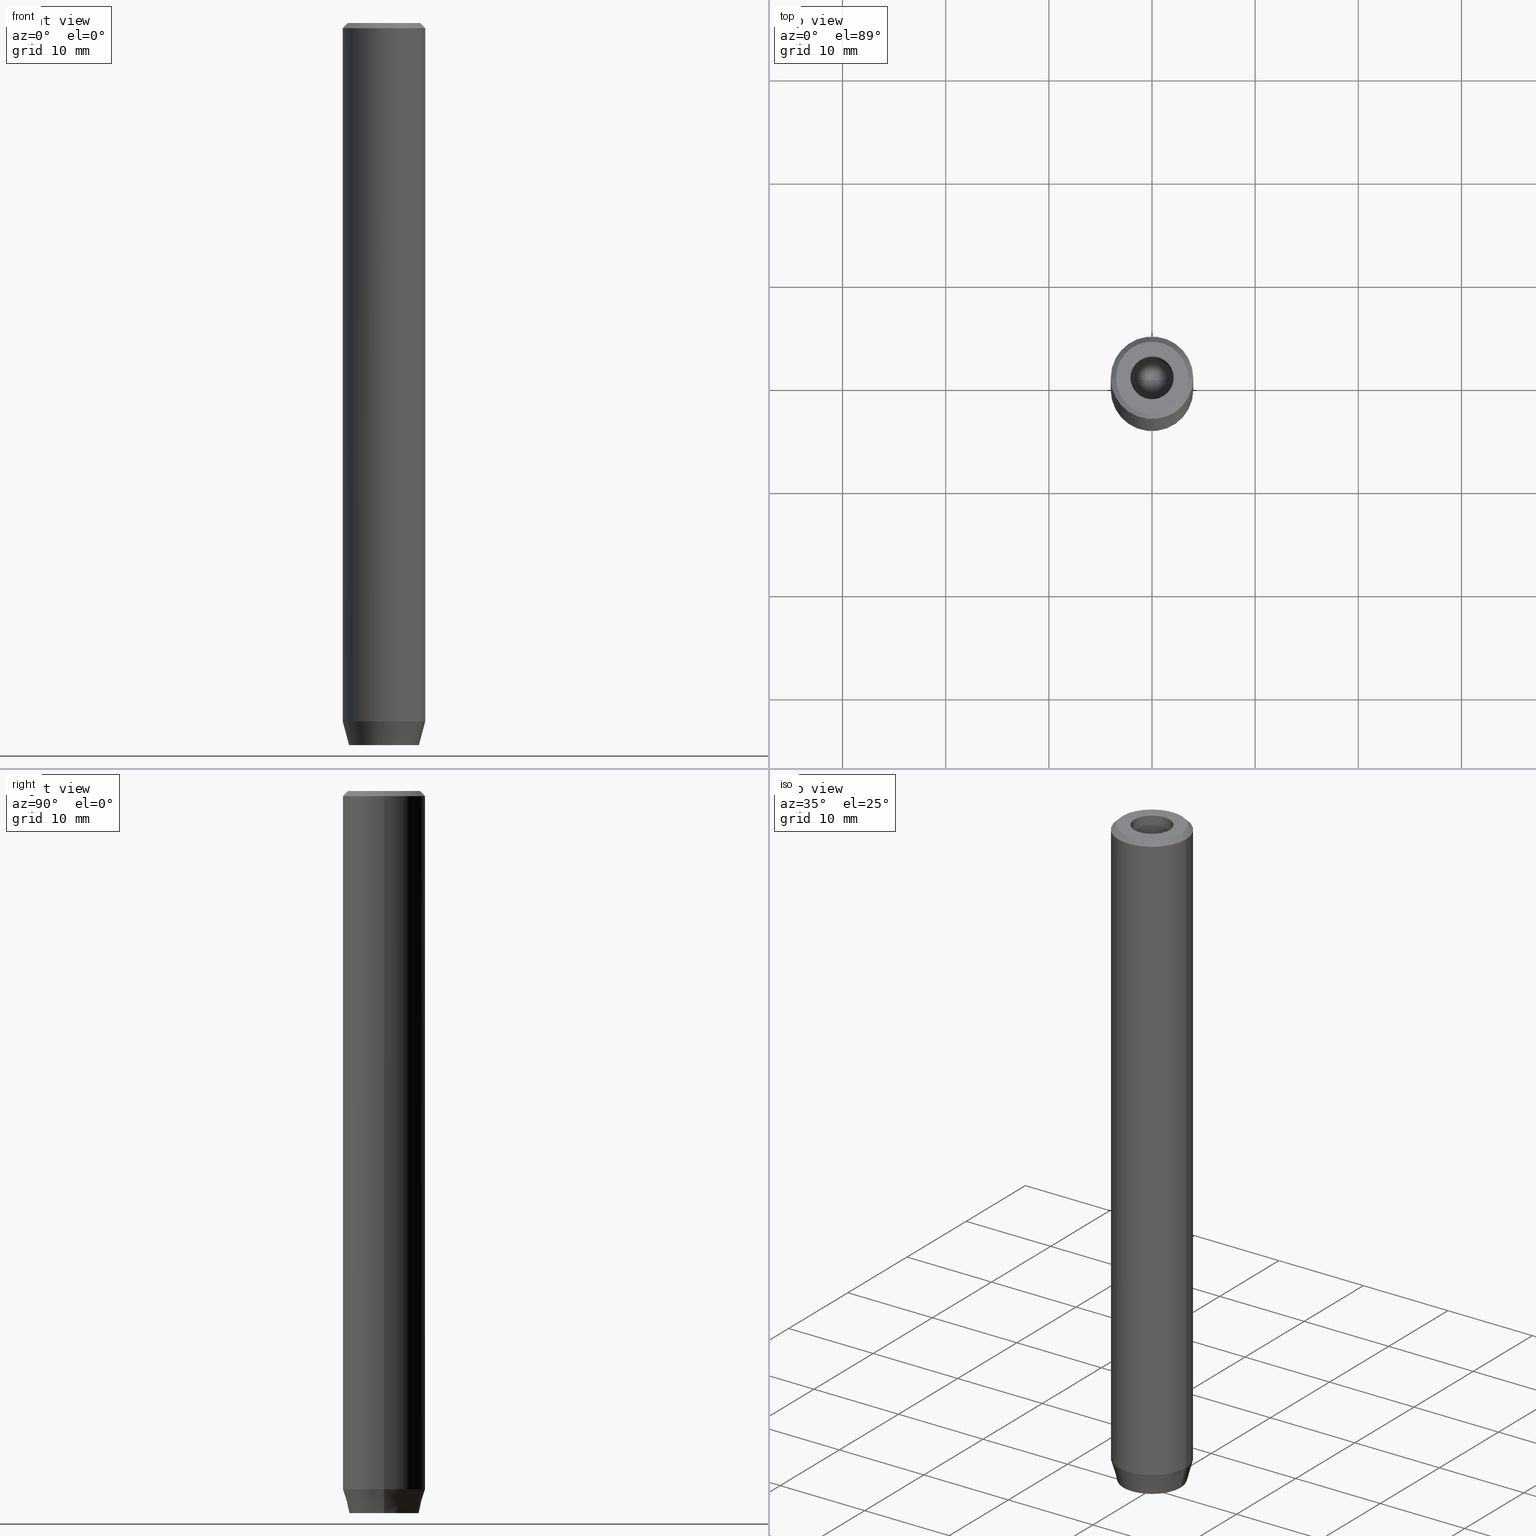
[diagram: canonical four-view strip — front | top / right | iso, engineering-drawing reading convention]
A machine part, canonical four-view strip (front | top / right | iso — engineering-drawing reading convention). The complete STEP part file that produces these views, byte-faithful:
ISO-10303-21;
HEADER;
FILE_DESCRIPTION (( 'STEP AP203' ),
    '1' );
FILE_NAME ('b633.STEP',
    '2024-01-02T23:09:10',
    ( '' ),
    ( '' ),
    'SwSTEP 2.0',
    'SolidWorks 2019',
    '' );
FILE_SCHEMA (( 'CONFIG_CONTROL_DESIGN' ));
ENDSEC;

DATA;
#1 = DIRECTION ( 'NONE',  ( -0.000000000000000000, -0.000000000000000000, 1.000000000000000000 ) ) ;
#2 = CC_DESIGN_PERSON_AND_ORGANIZATION_ASSIGNMENT ( #376, #518, ( #102 ) ) ;
#3 = DATE_AND_TIME ( #6, #151 ) ;
#4 = FACE_OUTER_BOUND ( 'NONE', #96, .T. ) ;
#5 = AXIS2_PLACEMENT_3D ( 'NONE', #230, #312, #233 ) ;
#6 = CALENDAR_DATE ( 2024, 3, 1 ) ;
#7 = APPROVAL_ROLE ( '' ) ;
#8 = CARTESIAN_POINT ( 'NONE',  ( -3.370670652075219192E-15, 0.000000000000000000, -13.76180729995787644 ) ) ;
#9 = VERTEX_POINT ( 'NONE', #341 ) ;
#10 = DIRECTION ( 'NONE',  ( 0.000000000000000000, 0.000000000000000000, -1.000000000000000000 ) ) ;
#11 = CARTESIAN_POINT ( 'NONE',  ( -2.099999999999997868, 2.571758278209438999E-16, 0.000000000000000000 ) ) ;
#12 = ORIENTED_EDGE ( 'NONE', *, *, #474, .F. ) ;
#13 = CIRCLE ( 'NONE', #539, 2.099999999999996980 ) ;
#14 = VECTOR ( 'NONE', #338, 1000.000000000000000 ) ;
#15 = CC_DESIGN_SECURITY_CLASSIFICATION ( #326, ( #572 ) ) ;
#16 = DIRECTION ( 'NONE',  ( -0.000000000000000000, -0.000000000000000000, 1.000000000000000000 ) ) ;
#17 = VERTEX_POINT ( 'NONE', #520 ) ;
#18 = EDGE_CURVE ( 'NONE', #353, #257, #163, .T. ) ;
#19 = DIRECTION ( 'NONE',  ( 1.000000000000000000, 0.000000000000000000, 0.000000000000000000 ) ) ;
#20 = DIRECTION ( 'NONE',  ( 1.000000000000000000, 0.000000000000000000, 0.000000000000000000 ) ) ;
#21 = EDGE_CURVE ( 'NONE', #276, #444, #169, .T. ) ;
#22 = ORIENTED_EDGE ( 'NONE', *, *, #124, .F. ) ;
#23 = VERTEX_POINT ( 'NONE', #251 ) ;
#24 = CLOSED_SHELL ( 'NONE', ( #87, #198, #524, #315, #508, #464, #574, #58, #144, #367, #249, #400, #356, #268, #76, #252, #98, #343, #325 ) ) ;
#25 = CARTESIAN_POINT ( 'NONE',  ( -3.499999999999989342, 0.000000000000000000, 0.000000000000000000 ) ) ;
#26 = CARTESIAN_POINT ( 'NONE',  ( -2.099999999999996980, 2.571758278209438013E-16, -12.50000000000000000 ) ) ;
#27 = CONICAL_SURFACE ( 'NONE', #467, 2.099999999999996980, 1.029744258676653201 ) ;
#28 = DIRECTION ( 'NONE',  ( -0.000000000000000000, -0.000000000000000000, 1.000000000000000000 ) ) ;
#29 = ORIENTED_EDGE ( 'NONE', *, *, #385, .T. ) ;
#30 = ORIENTED_EDGE ( 'NONE', *, *, #301, .T. ) ;
#31 = ORIENTED_EDGE ( 'NONE', *, *, #40, .F. ) ;
#32 = AXIS2_PLACEMENT_3D ( 'NONE', #306, #443, #486 ) ;
#33 = AXIS2_PLACEMENT_3D ( 'NONE', #43, #550, #505 ) ;
#34 = ORIENTED_EDGE ( 'NONE', *, *, #234, .F. ) ;
#35 = ORIENTED_EDGE ( 'NONE', *, *, #232, .T. ) ;
#36 = ORIENTED_EDGE ( 'NONE', *, *, #402, .T. ) ;
#37 = EDGE_CURVE ( 'NONE', #353, #219, #566, .T. ) ;
#38 = CYLINDRICAL_SURFACE ( 'NONE', #202, 2.099999999999997868 ) ;
#39 = ORIENTED_EDGE ( 'NONE', *, *, #18, .F. ) ;
#40 = EDGE_CURVE ( 'NONE', #133, #9, #70, .T. ) ;
#41 = CARTESIAN_POINT ( 'NONE',  ( -4.000000000000000000, 4.898587196589412829E-16, -67.70000000000001705 ) ) ;
#42 = DIRECTION ( 'NONE',  ( -0.5000000000000001110, 0.8660254037844385966, 0.000000000000000000 ) ) ;
#43 = CARTESIAN_POINT ( 'NONE',  ( -1.000000000000000222, -1.732050807568877637, -67.20000000000000284 ) ) ;
#44 = VECTOR ( 'NONE', #229, 1000.000000000000000 ) ;
#45 = CARTESIAN_POINT ( 'NONE',  ( -1.999999999999998224, 1.126735949052866956E-15, -70.00000000000000000 ) ) ;
#46 = EDGE_LOOP ( 'NONE', ( #59, #517 ) ) ;
#47 = EDGE_CURVE ( 'NONE', #430, #107, #530, .T. ) ;
#48 = DIRECTION ( 'NONE',  ( 1.000000000000000000, 0.000000000000000000, 0.000000000000000000 ) ) ;
#49 = CARTESIAN_POINT ( 'NONE',  ( 2.168404344971008868E-16, -2.309401076758503812, -67.20000000000000284 ) ) ;
#50 = CARTESIAN_POINT ( 'NONE',  ( -1.999999999999998224, 1.126735949052866956E-15, -67.20000000000000284 ) ) ;
#51 = CC_DESIGN_DATE_AND_TIME_ASSIGNMENT ( #3, #188, ( #326 ) ) ;
#52 = CARTESIAN_POINT ( 'NONE',  ( 0.000000000000000000, 0.000000000000000000, 0.000000000000000000 ) ) ;
#53 = APPROVAL_DATE_TIME ( #475, #191 ) ;
#54 = LINE ( 'NONE', #556, #362 ) ;
#55 = VECTOR ( 'NONE', #434, 1000.000000000000000 ) ;
#56 = PERSON_AND_ORGANIZATION ( #166, #584 ) ;
#57 = LINE ( 'NONE', #159, #553 ) ;
#58 = ADVANCED_FACE ( 'NONE', ( #424 ), #136, .T. ) ;
#59 = ORIENTED_EDGE ( 'NONE', *, *, #281, .F. ) ;
#60 = CYLINDRICAL_SURFACE ( 'NONE', #457, 2.099999999999997868 ) ;
#61 = DIRECTION ( 'NONE',  ( -0.000000000000000000, -0.000000000000000000, -1.000000000000000000 ) ) ;
#62 = CARTESIAN_POINT ( 'NONE',  ( 0.000000000000000000, 0.000000000000000000, 0.000000000000000000 ) ) ;
#63 = DIRECTION ( 'NONE',  ( -0.000000000000000000, -0.000000000000000000, 1.000000000000000000 ) ) ;
#64 = EDGE_CURVE ( 'NONE', #107, #430, #13, .T. ) ;
#65 = AXIS2_PLACEMENT_3D ( 'NONE', #195, #63, #19 ) ;
#66 = LINE ( 'NONE', #476, #541 ) ;
#67 = CARTESIAN_POINT ( 'NONE',  ( 0.000000000000000000, 0.000000000000000000, -67.70000000000001705 ) ) ;
#68 = ORIENTED_EDGE ( 'NONE', *, *, #303, .F. ) ;
#69 = DIRECTION ( 'NONE',  ( -0.000000000000000000, -0.000000000000000000, 1.000000000000000000 ) ) ;
#70 = LINE ( 'NONE', #113, #454 ) ;
#71 = DIRECTION ( 'NONE',  ( -0.8660254037844387076, 0.5000000000000001110, 0.000000000000000000 ) ) ;
#72 = ORIENTED_EDGE ( 'NONE', *, *, #446, .F. ) ;
#73 = ORIENTED_EDGE ( 'NONE', *, *, #255, .T. ) ;
#74 = VERTEX_POINT ( 'NONE', #288 ) ;
#75 = ORIENTED_EDGE ( 'NONE', *, *, #145, .T. ) ;
#76 = ADVANCED_FACE ( 'NONE', ( #382 ), #427, .F. ) ;
#77 =( NAMED_UNIT ( * ) PLANE_ANGLE_UNIT ( ) SI_UNIT ( $, .RADIAN. ) );
#78 = VECTOR ( 'NONE', #125, 1000.000000000000114 ) ;
#79 = EDGE_CURVE ( 'NONE', #107, #122, #103, .T. ) ;
#80 = CIRCLE ( 'NONE', #440, 4.000000000000000000 ) ;
#81 = LINE ( 'NONE', #264, #91 ) ;
#82 = ORIENTED_EDGE ( 'NONE', *, *, #385, .F. ) ;
#83 = LINE ( 'NONE', #506, #570 ) ;
#84 = ORIENTED_EDGE ( 'NONE', *, *, #37, .T. ) ;
#85 = LINE ( 'NONE', #361, #478 ) ;
#86 = ORIENTED_EDGE ( 'NONE', *, *, #106, .T. ) ;
#87 = ADVANCED_FACE ( 'NONE', ( #436 ), #60, .F. ) ;
#88 = LINE ( 'NONE', #183, #141 ) ;
#89 = DIRECTION ( 'NONE',  ( -0.000000000000000000, -0.000000000000000000, 1.000000000000000000 ) ) ;
#90 = VECTOR ( 'NONE', #500, 1000.000000000000000 ) ;
#91 = VECTOR ( 'NONE', #130, 1000.000000000000114 ) ;
#92 = CARTESIAN_POINT ( 'NONE',  ( -2.099999999999998757, 2.571758278209439985E-16, -1.990051048614449116E-16 ) ) ;
#93 =( LENGTH_UNIT ( ) NAMED_UNIT ( * ) SI_UNIT ( .MILLI., .METRE. ) );
#94 = APPROVAL_STATUS ( 'not_yet_approved' ) ;
#95 = DIRECTION ( 'NONE',  ( -1.000000000000000000, 0.000000000000000000, 0.000000000000000000 ) ) ;
#96 = EDGE_LOOP ( 'NONE', ( #73, #527, #126, #396 ) ) ;
#97 = PERSON_AND_ORGANIZATION_ROLE ( 'classification_officer' ) ;
#98 = ADVANCED_FACE ( 'NONE', ( #243 ), #346, .T. ) ;
#99 = LINE ( 'NONE', #11, #279 ) ;
#100 = AXIS2_PLACEMENT_3D ( 'NONE', #473, #372, #560 ) ;
#101 = PERSON_AND_ORGANIZATION ( #166, #584 ) ;
#102 = PRODUCT ( 'b633', 'b633', '', ( #104 ) ) ;
#103 = LINE ( 'NONE', #295, #391 ) ;
#104 = MECHANICAL_CONTEXT ( 'NONE', #240, 'mechanical' ) ;
#105 = CARTESIAN_POINT ( 'NONE',  ( -2.099999999999996980, 2.571758278209438013E-16, -12.50000000000000000 ) ) ;
#106 = EDGE_CURVE ( 'NONE', #271, #494, #513, .T. ) ;
#107 = VERTEX_POINT ( 'NONE', #563 ) ;
#108 = DATE_AND_TIME ( #153, #263 ) ;
#109 = DIRECTION ( 'NONE',  ( -1.000000000000000000, 0.000000000000000000, -0.000000000000000000 ) ) ;
#110 = ORIENTED_EDGE ( 'NONE', *, *, #474, .T. ) ;
#111 = VECTOR ( 'NONE', #335, 1000.000000000000000 ) ;
#112 = CC_DESIGN_APPROVAL ( #470, ( #326 ) ) ;
#113 = CARTESIAN_POINT ( 'NONE',  ( 1.000000000000000444, 1.732050807568877637, -70.00000000000000000 ) ) ;
#114 = ORIENTED_EDGE ( 'NONE', *, *, #543, .T. ) ;
#115 = DIRECTION ( 'NONE',  ( -0.7071067811865474617, 0.000000000000000000, -0.7071067811865474617 ) ) ;
#116 = DIRECTION ( 'NONE',  ( -0.000000000000000000, -0.000000000000000000, 1.000000000000000000 ) ) ;
#117 = VECTOR ( 'NONE', #156, 1000.000000000000000 ) ;
#118 = CARTESIAN_POINT ( 'NONE',  ( 0.000000000000000000, 0.000000000000000000, 0.000000000000000000 ) ) ;
#119 = ORIENTED_EDGE ( 'NONE', *, *, #40, .T. ) ;
#120 = AXIS2_PLACEMENT_3D ( 'NONE', #247, #516, #471 ) ;
#121 = VECTOR ( 'NONE', #374, 1000.000000000000000 ) ;
#122 = VERTEX_POINT ( 'NONE', #403 ) ;
#123 = EDGE_CURVE ( 'NONE', #350, #426, #333, .T. ) ;
#124 = EDGE_CURVE ( 'NONE', #122, #216, #298, .T. ) ;
#125 = DIRECTION ( 'NONE',  ( 0.7071067811865474617, 8.659560562354932858E-17, -0.7071067811865474617 ) ) ;
#126 = ORIENTED_EDGE ( 'NONE', *, *, #301, .F. ) ;
#127 = DIRECTION ( 'NONE',  ( 0.8660254037844388186, 0.4999999999999996669, 0.000000000000000000 ) ) ;
#128 = EDGE_LOOP ( 'NONE', ( #354, #86 ) ) ;
#129 = CC_DESIGN_PERSON_AND_ORGANIZATION_ASSIGNMENT ( #511, #462, ( #572 ) ) ;
#130 = DIRECTION ( 'NONE',  ( -0.8660254037844388186, -0.4999999999999996114, 0.000000000000000000 ) ) ;
#131 = DIRECTION ( 'NONE',  ( -0.000000000000000000, -0.000000000000000000, -1.000000000000000000 ) ) ;
#132 = DIRECTION ( 'NONE',  ( -0.000000000000000000, -0.000000000000000000, 1.000000000000000000 ) ) ;
#133 = VERTEX_POINT ( 'NONE', #414 ) ;
#134 = CARTESIAN_POINT ( 'NONE',  ( -1.999999999999998224, 1.126735949052866956E-15, -67.20000000000000284 ) ) ;
#135 = ORIENTED_EDGE ( 'NONE', *, *, #123, .F. ) ;
#136 = CYLINDRICAL_SURFACE ( 'NONE', #569, 4.000000000000000000 ) ;
#137 = DIRECTION ( 'NONE',  ( -0.000000000000000000, -0.000000000000000000, 1.000000000000000000 ) ) ;
#138 = CARTESIAN_POINT ( 'NONE',  ( 0.9999999999999997780, -1.732050807568878747, -67.20000000000000284 ) ) ;
#139 = ORIENTED_EDGE ( 'NONE', *, *, #429, .T. ) ;
#140 = CARTESIAN_POINT ( 'NONE',  ( 0.000000000000000000, 0.000000000000000000, -0.5000000000000108802 ) ) ;
#141 = VECTOR ( 'NONE', #364, 1000.000000000000000 ) ;
#142 = LOCAL_TIME ( 0, 9, 10.00000000000000000, #420 ) ;
#143 = ORIENTED_EDGE ( 'NONE', *, *, #567, .T. ) ;
#144 = ADVANCED_FACE ( 'NONE', ( #540 ), #487, .T. ) ;
#145 = EDGE_CURVE ( 'NONE', #542, #430, #322, .T. ) ;
#146 = COORDINATED_UNIVERSAL_TIME_OFFSET ( 1, 0, .AHEAD. ) ;
#147 = FACE_OUTER_BOUND ( 'NONE', #395, .T. ) ;
#148 = CALENDAR_DATE ( 2024, 3, 1 ) ;
#149 = CARTESIAN_POINT ( 'NONE',  ( 0.000000000000000000, 3.383716857408417766, -70.00000000000000000 ) ) ;
#150 = ORIENTED_EDGE ( 'NONE', *, *, #79, .T. ) ;
#151 = LOCAL_TIME ( 0, 9, 10.00000000000000000, #146 ) ;
#152 = DIRECTION ( 'NONE',  ( 1.000000000000000000, 0.000000000000000000, 0.000000000000000000 ) ) ;
#153 = CALENDAR_DATE ( 2024, 3, 1 ) ;
#154 = EDGE_CURVE ( 'NONE', #408, #176, #587, .T. ) ;
#155 = DIRECTION ( 'NONE',  ( -0.000000000000000000, -0.000000000000000000, 1.000000000000000000 ) ) ;
#156 = DIRECTION ( 'NONE',  ( -0.000000000000000000, -0.000000000000000000, -1.000000000000000000 ) ) ;
#157 = ORIENTED_EDGE ( 'NONE', *, *, #582, .F. ) ;
#158 = APPROVAL_DATE_TIME ( #431, #239 ) ;
#159 = CARTESIAN_POINT ( 'NONE',  ( 2.000000000000000888, 0.000000000000000000, -70.00000000000000000 ) ) ;
#160 = DIRECTION ( 'NONE',  ( 0.8660254037844385966, -0.5000000000000001110, 0.000000000000000000 ) ) ;
#161 = VECTOR ( 'NONE', #71, 999.9999999999998863 ) ;
#162 = CONICAL_SURFACE ( 'NONE', #181, 4.000000000000000000, 0.2617993877991497964 ) ;
#163 = LINE ( 'NONE', #167, #222 ) ;
#164 = EDGE_CURVE ( 'NONE', #408, #23, #83, .T. ) ;
#165 = DIRECTION ( 'NONE',  ( -0.2588190451025210725, 3.169619151431769255E-17, 0.9659258262890680902 ) ) ;
#166 = PERSON ( 'NEUR�EN�', 'NEUR�EN�', 'NEUR�EN�', ('NEUR�EN�'), ('NEUR�EN�'), ('NEUR�EN�') ) ;
#167 = CARTESIAN_POINT ( 'NONE',  ( 0.9999999999999997780, -1.732050807568878747, -67.20000000000000284 ) ) ;
#168 = ORIENTED_EDGE ( 'NONE', *, *, #154, .F. ) ;
#169 = CIRCLE ( 'NONE', #377, 4.000000000000000000 ) ;
#170 = ORIENTED_EDGE ( 'NONE', *, *, #568, .T. ) ;
#171 = AXIS2_PLACEMENT_3D ( 'NONE', #220, #496, #585 ) ;
#172 = PRODUCT_DEFINITION ( 'NEZN�M�', '', #572, #319 ) ;
#173 = EDGE_LOOP ( 'NONE', ( #143, #114, #29, #328 ) ) ;
#174 = PLANE ( 'NONE',  #552 ) ;
#175 = DIRECTION ( 'NONE',  ( -1.000000000000000000, 0.000000000000000000, 0.000000000000000000 ) ) ;
#176 = VERTEX_POINT ( 'NONE', #266 ) ;
#177 = DIRECTION ( 'NONE',  ( 1.000000000000000000, 0.000000000000000000, 0.000000000000000000 ) ) ;
#178 = EDGE_LOOP ( 'NONE', ( #435, #497, #256, #35 ) ) ;
#179 = AXIS2_PLACEMENT_3D ( 'NONE', #559, #10, #390 ) ;
#180 = AXIS2_PLACEMENT_3D ( 'NONE', #62, #231, #244 ) ;
#181 = AXIS2_PLACEMENT_3D ( 'NONE', #456, #499, #184 ) ;
#182 = ORIENTED_EDGE ( 'NONE', *, *, #543, .F. ) ;
#183 = CARTESIAN_POINT ( 'NONE',  ( 4.000000000000000000, 0.000000000000000000, 0.000000000000000000 ) ) ;
#184 = DIRECTION ( 'NONE',  ( 1.000000000000000000, 0.000000000000000000, 0.000000000000000000 ) ) ;
#185 = CARTESIAN_POINT ( 'NONE',  ( 4.000000000000000000, 0.000000000000000000, -67.70000000000001705 ) ) ;
#186 = ORIENTED_EDGE ( 'NONE', *, *, #532, .T. ) ;
#187 = LINE ( 'NONE', #223, #78 ) ;
#188 = DATE_TIME_ROLE ( 'classification_date' ) ;
#189 = DIRECTION ( 'NONE',  ( 1.000000000000000000, 0.000000000000000000, 0.000000000000000000 ) ) ;
#190 = VECTOR ( 'NONE', #213, 1000.000000000000000 ) ;
#191 = APPROVAL ( #468, 'NEUR�EN�' ) ;
#192 = VECTOR ( 'NONE', #386, 1000.000000000000000 ) ;
#193 = EDGE_CURVE ( 'NONE', #23, #580, #450, .T. ) ;
#194 = SECURITY_CLASSIFICATION_LEVEL ( 'unclassified' ) ;
#195 = CARTESIAN_POINT ( 'NONE',  ( 0.000000000000000000, 0.000000000000000000, 0.000000000000000000 ) ) ;
#196 = PRODUCT_RELATED_PRODUCT_CATEGORY ( 'detail', '', ( #102 ) ) ;
#197 = CARTESIAN_POINT ( 'NONE',  ( -1.000000000000000444, 1.732050807568877637, -70.00000000000000000 ) ) ;
#198 = ADVANCED_FACE ( 'NONE', ( #504 ), #27, .F. ) ;
#199 = ORIENTED_EDGE ( 'NONE', *, *, #484, .F. ) ;
#200 = DIRECTION ( 'NONE',  ( -0.000000000000000000, -0.000000000000000000, 1.000000000000000000 ) ) ;
#201 = CARTESIAN_POINT ( 'NONE',  ( 2.000000000000000888, 0.000000000000000000, -67.20000000000000284 ) ) ;
#202 = AXIS2_PLACEMENT_3D ( 'NONE', #52, #137, #189 ) ;
#203 = ADVANCED_BREP_SHAPE_REPRESENTATION ( 'b633', ( #441, #180 ), #522 ) ;
#204 = CARTESIAN_POINT ( 'NONE',  ( 3.383716857408417766, 0.000000000000000000, -70.00000000000000000 ) ) ;
#205 = ORIENTED_EDGE ( 'NONE', *, *, #193, .F. ) ;
#206 = CARTESIAN_POINT ( 'NONE',  ( 0.000000000000000000, 0.000000000000000000, -67.70000000000001705 ) ) ;
#207 = ORIENTED_EDGE ( 'NONE', *, *, #21, .T. ) ;
#208 = CARTESIAN_POINT ( 'NONE',  ( 0.000000000000000000, 0.000000000000000000, 0.000000000000000000 ) ) ;
#209 = EDGE_CURVE ( 'NONE', #74, #276, #573, .T. ) ;
#210 = EDGE_LOOP ( 'NONE', ( #349, #72, #168, #373 ) ) ;
#211 = VECTOR ( 'NONE', #214, 1000.000000000000114 ) ;
#212 = AXIS2_PLACEMENT_3D ( 'NONE', #50, #413, #327 ) ;
#213 = DIRECTION ( 'NONE',  ( -0.8571673007021116675, 1.049727191138617833E-16, 0.5150380749100552658 ) ) ;
#214 = DIRECTION ( 'NONE',  ( 0.2588190451025210725, 0.000000000000000000, 0.9659258262890680902 ) ) ;
#215 = EDGE_CURVE ( 'NONE', #444, #350, #88, .T. ) ;
#216 = VERTEX_POINT ( 'NONE', #92 ) ;
#217 = CIRCLE ( 'NONE', #253, 2.099999999999998757 ) ;
#218 = ORIENTED_EDGE ( 'NONE', *, *, #303, .T. ) ;
#219 = VERTEX_POINT ( 'NONE', #528 ) ;
#220 = CARTESIAN_POINT ( 'NONE',  ( 0.000000000000000000, 0.000000000000000000, -1.990051048614449116E-16 ) ) ;
#221 = VERTEX_POINT ( 'NONE', #581 ) ;
#222 = VECTOR ( 'NONE', #561, 1000.000000000000114 ) ;
#223 = CARTESIAN_POINT ( 'NONE',  ( 3.499999999999989342, 4.286263797015722790E-16, 0.000000000000000000 ) ) ;
#224 = CARTESIAN_POINT ( 'NONE',  ( 0.000000000000000000, 0.000000000000000000, -12.50000000000000000 ) ) ;
#225 = CC_DESIGN_APPROVAL ( #191, ( #172 ) ) ;
#226 = PLANE ( 'NONE',  #212 ) ;
#227 = CARTESIAN_POINT ( 'NONE',  ( -1.000000000000000222, -1.732050807568877637, -70.00000000000000000 ) ) ;
#228 = EDGE_LOOP ( 'NONE', ( #261, #12, #199, #259 ) ) ;
#229 = DIRECTION ( 'NONE',  ( -0.000000000000000000, -0.000000000000000000, -1.000000000000000000 ) ) ;
#230 = CARTESIAN_POINT ( 'NONE',  ( 0.000000000000000000, 0.000000000000000000, -12.50000000000000000 ) ) ;
#231 = DIRECTION ( 'NONE',  ( 0.000000000000000000, 0.000000000000000000, 1.000000000000000000 ) ) ;
#232 = EDGE_CURVE ( 'NONE', #221, #9, #85, .T. ) ;
#233 = DIRECTION ( 'NONE',  ( 1.000000000000000000, 0.000000000000000000, 0.000000000000000000 ) ) ;
#234 = EDGE_CURVE ( 'NONE', #546, #444, #318, .T. ) ;
#235 = ORIENTED_EDGE ( 'NONE', *, *, #281, .T. ) ;
#236 = PERSON_AND_ORGANIZATION_ROLE ( 'design_supplier' ) ;
#237 = PLANE ( 'NONE',  #533 ) ;
#238 = APPROVAL_PERSON_ORGANIZATION ( #334, #191, #514 ) ;
#239 = APPROVAL ( #329, 'NEUR�EN�' ) ;
#240 = APPLICATION_CONTEXT ( 'configuration controlled 3d designs of mechanical parts and assemblies' ) ;
#241 = PERSON_AND_ORGANIZATION_ROLE ( 'creator' ) ;
#242 = CARTESIAN_POINT ( 'NONE',  ( -3.499999999999989342, 0.000000000000000000, 0.000000000000000000 ) ) ;
#243 = FACE_OUTER_BOUND ( 'NONE', #305, .T. ) ;
#244 = DIRECTION ( 'NONE',  ( 1.000000000000000000, 0.000000000000000000, 0.000000000000000000 ) ) ;
#245 = VECTOR ( 'NONE', #165, 1000.000000000000114 ) ;
#246 = LOCAL_TIME ( 0, 9, 10.00000000000000000, #554 ) ;
#247 = CARTESIAN_POINT ( 'NONE',  ( 2.000000000000000888, 0.000000000000000000, -67.20000000000000284 ) ) ;
#248 = CARTESIAN_POINT ( 'NONE',  ( 2.168404344971008868E-16, -2.309401076758503812, -70.00000000000000000 ) ) ;
#249 = ADVANCED_FACE ( 'NONE', ( #270 ), #174, .F. ) ;
#250 = DIRECTION ( 'NONE',  ( 1.000000000000000000, 0.000000000000000000, 0.000000000000000000 ) ) ;
#251 = CARTESIAN_POINT ( 'NONE',  ( -1.999999999999998668, -1.154700538379252572, -70.00000000000000000 ) ) ;
#252 = ADVANCED_FACE ( 'NONE', ( #537 ), #410, .F. ) ;
#253 = AXIS2_PLACEMENT_3D ( 'NONE', #359, #132, #538 ) ;
#254 = DIRECTION ( 'NONE',  ( 0.000000000000000000, 0.000000000000000000, -1.000000000000000000 ) ) ;
#255 = EDGE_CURVE ( 'NONE', #480, #23, #275, .T. ) ;
#256 = ORIENTED_EDGE ( 'NONE', *, *, #466, .F. ) ;
#257 = VERTEX_POINT ( 'NONE', #368 ) ;
#258 = UNCERTAINTY_MEASURE_WITH_UNIT (LENGTH_MEASURE( 1.000000000000000082E-05 ), #93, 'distance_accuracy_value', 'NONE');
#259 = ORIENTED_EDGE ( 'NONE', *, *, #446, .T. ) ;
#260 = ORIENTED_EDGE ( 'NONE', *, *, #375, .F. ) ;
#261 = ORIENTED_EDGE ( 'NONE', *, *, #551, .T. ) ;
#262 = ORIENTED_EDGE ( 'NONE', *, *, #47, .T. ) ;
#263 = LOCAL_TIME ( 0, 9, 10.00000000000000000, #564 ) ;
#264 = CARTESIAN_POINT ( 'NONE',  ( 0.9999999999999997780, -1.732050807568878747, -70.00000000000000000 ) ) ;
#265 = EDGE_LOOP ( 'NONE', ( #562, #205, #397, #323, #272, #31 ) ) ;
#266 = CARTESIAN_POINT ( 'NONE',  ( -1.999999999999997780, 1.154700538379253238, -67.20000000000000284 ) ) ;
#267 = ORIENTED_EDGE ( 'NONE', *, *, #47, .F. ) ;
#268 = ADVANCED_FACE ( 'NONE', ( #549 ), #578, .F. ) ;
#269 = DIRECTION ( 'NONE',  ( -0.8660254037844387076, 0.5000000000000001110, 0.000000000000000000 ) ) ;
#270 = FACE_OUTER_BOUND ( 'NONE', #228, .T. ) ;
#271 = VERTEX_POINT ( 'NONE', #282 ) ;
#272 = ORIENTED_EDGE ( 'NONE', *, *, #423, .F. ) ;
#273 = DIRECTION ( 'NONE',  ( 1.000000000000000000, 0.000000000000000000, 0.000000000000000000 ) ) ;
#274 = PLANE ( 'NONE',  #33 ) ;
#275 = LINE ( 'NONE', #227, #161 ) ;
#276 = VERTEX_POINT ( 'NONE', #547 ) ;
#277 = EDGE_LOOP ( 'NONE', ( #36, #157, #39, #84 ) ) ;
#278 = CARTESIAN_POINT ( 'NONE',  ( 0.000000000000000000, 0.000000000000000000, 0.000000000000000000 ) ) ;
#279 = VECTOR ( 'NONE', #155, 1000.000000000000000 ) ;
#280 = DIRECTION ( 'NONE',  ( 0.000000000000000000, 0.000000000000000000, -1.000000000000000000 ) ) ;
#281 = EDGE_CURVE ( 'NONE', #546, #74, #447, .T. ) ;
#282 = CARTESIAN_POINT ( 'NONE',  ( 3.499999999999989342, 4.592425496802568056E-16, 0.000000000000000000 ) ) ;
#283 = APPROVAL_DATE_TIME ( #472, #470 ) ;
#284 = LINE ( 'NONE', #432, #121 ) ;
#285 = CALENDAR_DATE ( 2024, 3, 1 ) ;
#286 = LINE ( 'NONE', #201, #14 ) ;
#287 = AXIS2_PLACEMENT_3D ( 'NONE', #419, #324, #404 ) ;
#288 = CARTESIAN_POINT ( 'NONE',  ( -3.383716857408417766, 4.521222607617785469E-16, -70.00000000000000000 ) ) ;
#289 = PERSON_AND_ORGANIZATION ( #166, #584 ) ;
#290 = CARTESIAN_POINT ( 'NONE',  ( -4.000000000000000000, 4.898587196589412829E-16, -0.5000000000000108802 ) ) ;
#291 = DIRECTION ( 'NONE',  ( -0.000000000000000000, -0.000000000000000000, 1.000000000000000000 ) ) ;
#292 = CALENDAR_DATE ( 2024, 3, 1 ) ;
#293 = CARTESIAN_POINT ( 'NONE',  ( 4.000000000000000000, 0.000000000000000000, -67.70000000000001705 ) ) ;
#294 = ORIENTED_EDGE ( 'NONE', *, *, #232, .F. ) ;
#295 = CARTESIAN_POINT ( 'NONE',  ( 2.099999999999997868, 0.000000000000000000, 0.000000000000000000 ) ) ;
#296 = LINE ( 'NONE', #379, #111 ) ;
#297 = AXIS2_PLACEMENT_3D ( 'NONE', #482, #69, #437 ) ;
#298 = CIRCLE ( 'NONE', #171, 2.099999999999998757 ) ;
#299 = AXIS2_PLACEMENT_3D ( 'NONE', #544, #280, #175 ) ;
#300 = EDGE_LOOP ( 'NONE', ( #235, #489, #412, #34 ) ) ;
#301 = EDGE_CURVE ( 'NONE', #257, #408, #536, .T. ) ;
#302 = DIRECTION ( 'NONE',  ( 1.000000000000000000, 0.000000000000000000, 0.000000000000000000 ) ) ;
#303 = EDGE_CURVE ( 'NONE', #271, #350, #187, .T. ) ;
#304 = EDGE_LOOP ( 'NONE', ( #68, #314, #170, #135 ) ) ;
#305 = EDGE_LOOP ( 'NONE', ( #405, #186, #399, #451, #30, #415 ) ) ;
#306 = CARTESIAN_POINT ( 'NONE',  ( 1.000000000000000444, 1.732050807568877637, -67.20000000000000284 ) ) ;
#307 = AXIS2_PLACEMENT_3D ( 'NONE', #118, #501, #273 ) ;
#308 = EDGE_LOOP ( 'NONE', ( #320, #381, #310, #493 ) ) ;
#309 = ORIENTED_EDGE ( 'NONE', *, *, #64, .F. ) ;
#310 = ORIENTED_EDGE ( 'NONE', *, *, #234, .T. ) ;
#311 = APPLICATION_PROTOCOL_DEFINITION ( 'international standard', 'config_control_design', 1994, #240 ) ;
#312 = DIRECTION ( 'NONE',  ( -0.000000000000000000, -0.000000000000000000, 1.000000000000000000 ) ) ;
#313 = DIRECTION ( 'NONE',  ( 1.000000000000000000, 0.000000000000000000, 0.000000000000000000 ) ) ;
#314 = ORIENTED_EDGE ( 'NONE', *, *, #507, .F. ) ;
#315 = ADVANCED_FACE ( 'NONE', ( #586 ), #162, .T. ) ;
#316 = CC_DESIGN_APPROVAL ( #239, ( #572 ) ) ;
#317 = CARTESIAN_POINT ( 'NONE',  ( 2.000000000000000888, -1.154700538379252572, -67.20000000000000284 ) ) ;
#318 = LINE ( 'NONE', #185, #211 ) ;
#319 = DESIGN_CONTEXT ( 'detailed design', #548, 'design' ) ;
#320 = ORIENTED_EDGE ( 'NONE', *, *, #209, .F. ) ;
#321 = CARTESIAN_POINT ( 'NONE',  ( -1.000000000000000222, -1.732050807568877637, -67.20000000000000284 ) ) ;
#322 = LINE ( 'NONE', #26, #190 ) ;
#323 = ORIENTED_EDGE ( 'NONE', *, *, #402, .F. ) ;
#324 = DIRECTION ( 'NONE',  ( -0.000000000000000000, -0.000000000000000000, 1.000000000000000000 ) ) ;
#325 = ADVANCED_FACE ( 'NONE', ( #463 ), #38, .F. ) ;
#326 = SECURITY_CLASSIFICATION ( '', '', #194 ) ;
#327 = DIRECTION ( 'NONE',  ( -5.633679745264339711E-16, -1.000000000000000000, 0.000000000000000000 ) ) ;
#328 = ORIENTED_EDGE ( 'NONE', *, *, #215, .F. ) ;
#329 = APPROVAL_STATUS ( 'not_yet_approved' ) ;
#330 = LINE ( 'NONE', #465, #371 ) ;
#331 = PERSON_AND_ORGANIZATION ( #166, #584 ) ;
#332 = LINE ( 'NONE', #197, #192 ) ;
#333 = CIRCLE ( 'NONE', #409, 4.000000000000000000 ) ;
#334 = PERSON_AND_ORGANIZATION ( #166, #584 ) ;
#335 = DIRECTION ( 'NONE',  ( 0.8660254037844385966, 0.5000000000000001110, 0.000000000000000000 ) ) ;
#336 = APPROVAL_PERSON_ORGANIZATION ( #289, #470, #370 ) ;
#337 = SHAPE_DEFINITION_REPRESENTATION ( #384, #203 ) ;
#338 = DIRECTION ( 'NONE',  ( 0.000000000000000000, -1.000000000000000000, 0.000000000000000000 ) ) ;
#339 = ORIENTED_EDGE ( 'NONE', *, *, #64, .T. ) ;
#340 = DIRECTION ( 'NONE',  ( 0.000000000000000000, -1.000000000000000000, 0.000000000000000000 ) ) ;
#341 = CARTESIAN_POINT ( 'NONE',  ( 2.000000000000000888, 1.154700538379251462, -70.00000000000000000 ) ) ;
#342 = CC_DESIGN_DATE_AND_TIME_ASSIGNMENT ( #108, #557, ( #172 ) ) ;
#343 = ADVANCED_FACE ( 'NONE', ( #452 ), #439, .F. ) ;
#344 = AXIS2_PLACEMENT_3D ( 'NONE', #387, #525, #152 ) ;
#345 = AXIS2_PLACEMENT_3D ( 'NONE', #583, #89, #363 ) ;
#346 = PLANE ( 'NONE',  #179 ) ;
#347 = DIRECTION ( 'NONE',  ( -0.000000000000000000, -0.000000000000000000, -1.000000000000000000 ) ) ;
#348 = LINE ( 'NONE', #25, #352 ) ;
#349 = ORIENTED_EDGE ( 'NONE', *, *, #193, .T. ) ;
#350 = VERTEX_POINT ( 'NONE', #407 ) ;
#351 = VECTOR ( 'NONE', #406, 1000.000000000000000 ) ;
#352 = VECTOR ( 'NONE', #115, 1000.000000000000114 ) ;
#353 = VERTEX_POINT ( 'NONE', #317 ) ;
#354 = ORIENTED_EDGE ( 'NONE', *, *, #507, .T. ) ;
#355 = DIRECTION ( 'NONE',  ( 0.4999999999999996669, -0.8660254037844388186, 0.000000000000000000 ) ) ;
#356 = ADVANCED_FACE ( 'NONE', ( #4 ), #274, .F. ) ;
#357 = ORIENTED_EDGE ( 'NONE', *, *, #215, .T. ) ;
#358 = EDGE_CURVE ( 'NONE', #74, #546, #393, .T. ) ;
#359 = CARTESIAN_POINT ( 'NONE',  ( 0.000000000000000000, 0.000000000000000000, -1.990051048614449116E-16 ) ) ;
#360 = EDGE_LOOP ( 'NONE', ( #491, #490, #339 ) ) ;
#361 = CARTESIAN_POINT ( 'NONE',  ( 2.000000000000000888, 1.154700538379251462, -67.20000000000000284 ) ) ;
#362 = VECTOR ( 'NONE', #16, 1000.000000000000000 ) ;
#363 = DIRECTION ( 'NONE',  ( 1.000000000000000000, 0.000000000000000000, 0.000000000000000000 ) ) ;
#364 = DIRECTION ( 'NONE',  ( -0.000000000000000000, -0.000000000000000000, 1.000000000000000000 ) ) ;
#365 = ORIENTED_EDGE ( 'NONE', *, *, #124, .T. ) ;
#366 =( NAMED_UNIT ( * ) SI_UNIT ( $, .STERADIAN. ) SOLID_ANGLE_UNIT ( ) );
#367 = ADVANCED_FACE ( 'NONE', ( #495 ), #558, .T. ) ;
#368 = CARTESIAN_POINT ( 'NONE',  ( 2.168404344971008868E-16, -2.309401076758503812, -67.20000000000000284 ) ) ;
#369 = AXIS2_PLACEMENT_3D ( 'NONE', #138, #355, #127 ) ;
#370 = APPROVAL_ROLE ( '' ) ;
#371 = VECTOR ( 'NONE', #519, 1000.000000000000000 ) ;
#372 = DIRECTION ( 'NONE',  ( -0.000000000000000000, -0.000000000000000000, 1.000000000000000000 ) ) ;
#373 = ORIENTED_EDGE ( 'NONE', *, *, #164, .T. ) ;
#374 = DIRECTION ( 'NONE',  ( 0.8660254037844385966, -0.5000000000000001110, 0.000000000000000000 ) ) ;
#375 = EDGE_CURVE ( 'NONE', #216, #122, #217, .T. ) ;
#376 = PERSON_AND_ORGANIZATION ( #166, #584 ) ;
#377 = AXIS2_PLACEMENT_3D ( 'NONE', #67, #392, #20 ) ;
#378 = FACE_BOUND ( 'NONE', #265, .T. ) ;
#379 = CARTESIAN_POINT ( 'NONE',  ( -1.000000000000000444, 1.732050807568877637, -67.20000000000000284 ) ) ;
#380 = AXIS2_PLACEMENT_3D ( 'NONE', #140, #502, #461 ) ;
#381 = ORIENTED_EDGE ( 'NONE', *, *, #358, .T. ) ;
#382 = FACE_OUTER_BOUND ( 'NONE', #178, .T. ) ;
#383 = APPLICATION_PROTOCOL_DEFINITION ( 'international standard', 'config_control_design', 1994, #548 ) ;
#384 = PRODUCT_DEFINITION_SHAPE ( 'NONE', 'NONE',  #172 ) ;
#385 = EDGE_CURVE ( 'NONE', #426, #350, #421, .T. ) ;
#386 = DIRECTION ( 'NONE',  ( 0.8660254037844385966, 0.5000000000000001110, 0.000000000000000000 ) ) ;
#387 = CARTESIAN_POINT ( 'NONE',  ( 0.000000000000000000, 0.000000000000000000, 0.000000000000000000 ) ) ;
#388 = CARTESIAN_POINT ( 'NONE',  ( 2.000000000000000888, -1.154700538379252572, -67.20000000000000284 ) ) ;
#389 = ORIENTED_EDGE ( 'NONE', *, *, #532, .F. ) ;
#390 = DIRECTION ( 'NONE',  ( -1.000000000000000000, 0.000000000000000000, -0.000000000000000000 ) ) ;
#391 = VECTOR ( 'NONE', #291, 1000.000000000000000 ) ;
#392 = DIRECTION ( 'NONE',  ( -0.000000000000000000, -0.000000000000000000, 1.000000000000000000 ) ) ;
#393 = CIRCLE ( 'NONE', #345, 3.383716857408417766 ) ;
#394 = DIRECTION ( 'NONE',  ( 1.000000000000000000, 0.000000000000000000, 0.000000000000000000 ) ) ;
#395 = EDGE_LOOP ( 'NONE', ( #531, #218, #82, #523 ) ) ;
#396 = ORIENTED_EDGE ( 'NONE', *, *, #582, .T. ) ;
#397 = ORIENTED_EDGE ( 'NONE', *, *, #255, .F. ) ;
#398 = CONICAL_SURFACE ( 'NONE', #459, 3.499999999999989342, 0.7853981633974482790 ) ;
#399 = ORIENTED_EDGE ( 'NONE', *, *, #466, .T. ) ;
#400 = ADVANCED_FACE ( 'NONE', ( #417 ), #226, .F. ) ;
#401 = EDGE_LOOP ( 'NONE', ( #22, #260 ) ) ;
#402 = EDGE_CURVE ( 'NONE', #219, #480, #81, .T. ) ;
#403 = CARTESIAN_POINT ( 'NONE',  ( 2.099999999999998757, 0.000000000000000000, -1.990051048614449116E-16 ) ) ;
#404 = DIRECTION ( 'NONE',  ( 1.000000000000000000, 0.000000000000000000, 0.000000000000000000 ) ) ;
#405 = ORIENTED_EDGE ( 'NONE', *, *, #484, .T. ) ;
#406 = DIRECTION ( 'NONE',  ( 5.633679745264339711E-16, 1.000000000000000000, 0.000000000000000000 ) ) ;
#407 = CARTESIAN_POINT ( 'NONE',  ( 4.000000000000000000, 0.000000000000000000, -0.5000000000000108802 ) ) ;
#408 = VERTEX_POINT ( 'NONE', #515 ) ;
#409 = AXIS2_PLACEMENT_3D ( 'NONE', #438, #254, #394 ) ;
#410 = PLANE ( 'NONE',  #32 ) ;
#411 = AXIS2_PLACEMENT_3D ( 'NONE', #458, #28, #313 ) ;
#412 = ORIENTED_EDGE ( 'NONE', *, *, #567, .F. ) ;
#413 = DIRECTION ( 'NONE',  ( -1.000000000000000000, 5.633679745264339711E-16, 0.000000000000000000 ) ) ;
#414 = CARTESIAN_POINT ( 'NONE',  ( 0.000000000000000000, 2.309401076758503812, -70.00000000000000000 ) ) ;
#415 = ORIENTED_EDGE ( 'NONE', *, *, #154, .T. ) ;
#416 = CARTESIAN_POINT ( 'NONE',  ( 0.000000000000000000, 0.000000000000000000, -12.50000000000000000 ) ) ;
#417 = FACE_OUTER_BOUND ( 'NONE', #210, .T. ) ;
#418 = PERSON_AND_ORGANIZATION ( #166, #584 ) ;
#419 = CARTESIAN_POINT ( 'NONE',  ( 0.000000000000000000, 0.000000000000000000, -70.00000000000000000 ) ) ;
#420 = COORDINATED_UNIVERSAL_TIME_OFFSET ( 1, 0, .AHEAD. ) ;
#421 = CIRCLE ( 'NONE', #380, 4.000000000000000000 ) ;
#422 = LINE ( 'NONE', #512, #55 ) ;
#423 = EDGE_CURVE ( 'NONE', #9, #219, #57, .T. ) ;
#424 = FACE_OUTER_BOUND ( 'NONE', #576, .T. ) ;
#425 = FACE_OUTER_BOUND ( 'NONE', #46, .T. ) ;
#426 = VERTEX_POINT ( 'NONE', #290 ) ;
#427 = PLANE ( 'NONE',  #120 ) ;
#428 = EDGE_LOOP ( 'NONE', ( #119, #294, #389, #110 ) ) ;
#429 = EDGE_CURVE ( 'NONE', #430, #216, #99, .T. ) ;
#430 = VERTEX_POINT ( 'NONE', #105 ) ;
#431 = DATE_AND_TIME ( #148, #577 ) ;
#432 = CARTESIAN_POINT ( 'NONE',  ( 1.000000000000000444, 1.732050807568877637, -67.20000000000000284 ) ) ;
#433 = CIRCLE ( 'NONE', #65, 3.499999999999989342 ) ;
#434 = DIRECTION ( 'NONE',  ( 0.8571673007021116675, 0.000000000000000000, 0.5150380749100552658 ) ) ;
#435 = ORIENTED_EDGE ( 'NONE', *, *, #423, .T. ) ;
#436 = FACE_OUTER_BOUND ( 'NONE', #483, .T. ) ;
#437 = DIRECTION ( 'NONE',  ( 1.000000000000000000, 0.000000000000000000, 0.000000000000000000 ) ) ;
#438 = CARTESIAN_POINT ( 'NONE',  ( 0.000000000000000000, 0.000000000000000000, -0.5000000000000108802 ) ) ;
#439 = CONICAL_SURFACE ( 'NONE', #5, 2.099999999999996980, 1.029744258676653201 ) ;
#440 = AXIS2_PLACEMENT_3D ( 'NONE', #206, #481, #250 ) ;
#441 = MANIFOLD_SOLID_BREP ( 'Vrt�k z�vitn�ku pro M5 z�vit1', #24 ) ;
#442 = ORIENTED_EDGE ( 'NONE', *, *, #429, .F. ) ;
#443 = DIRECTION ( 'NONE',  ( 0.5000000000000001110, 0.8660254037844385966, -0.000000000000000000 ) ) ;
#444 = VERTEX_POINT ( 'NONE', #293 ) ;
#445 = CC_DESIGN_PERSON_AND_ORGANIZATION_ASSIGNMENT ( #56, #241, ( #172 ) ) ;
#446 = EDGE_CURVE ( 'NONE', #176, #580, #330, .T. ) ;
#447 = CIRCLE ( 'NONE', #287, 3.383716857408417766 ) ;
#448 = ORIENTED_EDGE ( 'NONE', *, *, #375, .T. ) ;
#449 = ORIENTED_EDGE ( 'NONE', *, *, #492, .F. ) ;
#450 = LINE ( 'NONE', #45, #90 ) ;
#451 = ORIENTED_EDGE ( 'NONE', *, *, #18, .T. ) ;
#452 = FACE_OUTER_BOUND ( 'NONE', #360, .T. ) ;
#453 = CARTESIAN_POINT ( 'NONE',  ( -1.000000000000000444, 1.732050807568877637, -67.20000000000000284 ) ) ;
#454 = VECTOR ( 'NONE', #160, 1000.000000000000000 ) ;
#455 = LINE ( 'NONE', #49, #44 ) ;
#456 = CARTESIAN_POINT ( 'NONE',  ( 0.000000000000000000, 0.000000000000000000, -67.70000000000001705 ) ) ;
#457 = AXIS2_PLACEMENT_3D ( 'NONE', #208, #200, #477 ) ;
#458 = CARTESIAN_POINT ( 'NONE',  ( 0.000000000000000000, 0.000000000000000000, -67.70000000000001705 ) ) ;
#459 = AXIS2_PLACEMENT_3D ( 'NONE', #469, #555, #95 ) ;
#460 = DIRECTION ( 'NONE',  ( -0.000000000000000000, -0.000000000000000000, 1.000000000000000000 ) ) ;
#461 = DIRECTION ( 'NONE',  ( 1.000000000000000000, 0.000000000000000000, 0.000000000000000000 ) ) ;
#462 = PERSON_AND_ORGANIZATION_ROLE ( 'creator' ) ;
#463 = FACE_OUTER_BOUND ( 'NONE', #526, .T. ) ;
#464 = ADVANCED_FACE ( 'NONE', ( #378, #425 ), #237, .T. ) ;
#465 = CARTESIAN_POINT ( 'NONE',  ( -1.999999999999997780, 1.154700538379253238, -67.20000000000000284 ) ) ;
#466 = EDGE_CURVE ( 'NONE', #221, #353, #286, .T. ) ;
#467 = AXIS2_PLACEMENT_3D ( 'NONE', #224, #116, #177 ) ;
#468 = APPROVAL_STATUS ( 'not_yet_approved' ) ;
#469 = CARTESIAN_POINT ( 'NONE',  ( 0.000000000000000000, 0.000000000000000000, 0.000000000000000000 ) ) ;
#470 = APPROVAL ( #94, 'NEUR�EN�' ) ;
#471 = DIRECTION ( 'NONE',  ( -0.000000000000000000, 0.000000000000000000, -1.000000000000000000 ) ) ;
#472 = DATE_AND_TIME ( #285, #142 ) ;
#473 = CARTESIAN_POINT ( 'NONE',  ( 0.000000000000000000, 0.000000000000000000, 0.000000000000000000 ) ) ;
#474 = EDGE_CURVE ( 'NONE', #17, #133, #66, .T. ) ;
#475 = DATE_AND_TIME ( #292, #246 ) ;
#476 = CARTESIAN_POINT ( 'NONE',  ( 0.000000000000000000, 2.309401076758503812, -67.20000000000000284 ) ) ;
#477 = DIRECTION ( 'NONE',  ( 1.000000000000000000, 0.000000000000000000, 0.000000000000000000 ) ) ;
#478 = VECTOR ( 'NONE', #131, 1000.000000000000000 ) ;
#479 = DIRECTION ( 'NONE',  ( 0.000000000000000000, 0.000000000000000000, -1.000000000000000000 ) ) ;
#480 = VERTEX_POINT ( 'NONE', #248 ) ;
#481 = DIRECTION ( 'NONE',  ( -0.000000000000000000, -0.000000000000000000, 1.000000000000000000 ) ) ;
#482 = CARTESIAN_POINT ( 'NONE',  ( 0.000000000000000000, 0.000000000000000000, -12.50000000000000000 ) ) ;
#483 = EDGE_LOOP ( 'NONE', ( #267, #139, #448, #534 ) ) ;
#484 = EDGE_CURVE ( 'NONE', #176, #17, #296, .T. ) ;
#485 = CC_DESIGN_PERSON_AND_ORGANIZATION_ASSIGNMENT ( #101, #236, ( #572 ) ) ;
#486 = DIRECTION ( 'NONE',  ( -0.8660254037844385966, 0.5000000000000001110, 0.000000000000000000 ) ) ;
#487 = CONICAL_SURFACE ( 'NONE', #411, 4.000000000000000000, 0.2617993877991497964 ) ;
#488 = APPROVAL_PERSON_ORGANIZATION ( #418, #239, #7 ) ;
#489 = ORIENTED_EDGE ( 'NONE', *, *, #209, .T. ) ;
#490 = ORIENTED_EDGE ( 'NONE', *, *, #492, .T. ) ;
#491 = ORIENTED_EDGE ( 'NONE', *, *, #145, .F. ) ;
#492 = EDGE_CURVE ( 'NONE', #542, #107, #422, .T. ) ;
#493 = ORIENTED_EDGE ( 'NONE', *, *, #21, .F. ) ;
#494 = VERTEX_POINT ( 'NONE', #242 ) ;
#495 = FACE_OUTER_BOUND ( 'NONE', #304, .T. ) ;
#496 = DIRECTION ( 'NONE',  ( -0.000000000000000000, -0.000000000000000000, 1.000000000000000000 ) ) ;
#497 = ORIENTED_EDGE ( 'NONE', *, *, #37, .F. ) ;
#498 = CARTESIAN_POINT ( 'NONE',  ( -1.999999999999997780, 1.154700538379253238, -70.00000000000000000 ) ) ;
#499 = DIRECTION ( 'NONE',  ( -0.000000000000000000, -0.000000000000000000, 1.000000000000000000 ) ) ;
#500 = DIRECTION ( 'NONE',  ( 5.633679745264339711E-16, 1.000000000000000000, 0.000000000000000000 ) ) ;
#501 = DIRECTION ( 'NONE',  ( 0.000000000000000000, -0.000000000000000000, 1.000000000000000000 ) ) ;
#502 = DIRECTION ( 'NONE',  ( 0.000000000000000000, 0.000000000000000000, -1.000000000000000000 ) ) ;
#503 = CC_DESIGN_PERSON_AND_ORGANIZATION_ASSIGNMENT ( #331, #97, ( #326 ) ) ;
#504 = FACE_OUTER_BOUND ( 'NONE', #579, .T. ) ;
#505 = DIRECTION ( 'NONE',  ( 0.8660254037844385966, -0.4999999999999999445, 0.000000000000000000 ) ) ;
#506 = CARTESIAN_POINT ( 'NONE',  ( -1.999999999999998668, -1.154700538379252572, -67.20000000000000284 ) ) ;
#507 = EDGE_CURVE ( 'NONE', #494, #271, #433, .T. ) ;
#508 = ADVANCED_FACE ( 'NONE', ( #510 ), #565, .T. ) ;
#509 = COORDINATED_UNIVERSAL_TIME_OFFSET ( 1, 0, .AHEAD. ) ;
#510 = FACE_OUTER_BOUND ( 'NONE', #173, .T. ) ;
#511 = PERSON_AND_ORGANIZATION ( #166, #584 ) ;
#512 = CARTESIAN_POINT ( 'NONE',  ( 2.099999999999996980, 0.000000000000000000, -12.50000000000000000 ) ) ;
#513 = CIRCLE ( 'NONE', #344, 3.499999999999989342 ) ;
#514 = APPROVAL_ROLE ( '' ) ;
#515 = CARTESIAN_POINT ( 'NONE',  ( -1.999999999999998668, -1.154700538379252572, -67.20000000000000284 ) ) ;
#516 = DIRECTION ( 'NONE',  ( 1.000000000000000000, 0.000000000000000000, -0.000000000000000000 ) ) ;
#517 = ORIENTED_EDGE ( 'NONE', *, *, #358, .F. ) ;
#518 = PERSON_AND_ORGANIZATION_ROLE ( 'design_owner' ) ;
#519 = DIRECTION ( 'NONE',  ( -0.000000000000000000, -0.000000000000000000, -1.000000000000000000 ) ) ;
#520 = CARTESIAN_POINT ( 'NONE',  ( 0.000000000000000000, 2.309401076758503812, -67.20000000000000284 ) ) ;
#521 = VECTOR ( 'NONE', #269, 999.9999999999998863 ) ;
#522 =( GEOMETRIC_REPRESENTATION_CONTEXT ( 3 ) GLOBAL_UNCERTAINTY_ASSIGNED_CONTEXT ( ( #258 ) ) GLOBAL_UNIT_ASSIGNED_CONTEXT ( ( #93, #77, #366 ) ) REPRESENTATION_CONTEXT ( 'NONE', 'WORKASPACE' ) );
#523 = ORIENTED_EDGE ( 'NONE', *, *, #568, .F. ) ;
#524 = ADVANCED_FACE ( 'NONE', ( #147 ), #398, .T. ) ;
#525 = DIRECTION ( 'NONE',  ( -0.000000000000000000, -0.000000000000000000, 1.000000000000000000 ) ) ;
#526 = EDGE_LOOP ( 'NONE', ( #442, #309, #150, #365 ) ) ;
#527 = ORIENTED_EDGE ( 'NONE', *, *, #164, .F. ) ;
#528 = CARTESIAN_POINT ( 'NONE',  ( 2.000000000000000888, -1.154700538379252572, -70.00000000000000000 ) ) ;
#529 = FACE_BOUND ( 'NONE', #401, .T. ) ;
#530 = CIRCLE ( 'NONE', #297, 2.099999999999996980 ) ;
#531 = ORIENTED_EDGE ( 'NONE', *, *, #106, .F. ) ;
#532 = EDGE_CURVE ( 'NONE', #17, #221, #284, .T. ) ;
#533 = AXIS2_PLACEMENT_3D ( 'NONE', #149, #479, #109 ) ;
#534 = ORIENTED_EDGE ( 'NONE', *, *, #79, .F. ) ;
#535 = ORIENTED_EDGE ( 'NONE', *, *, #123, .T. ) ;
#536 = LINE ( 'NONE', #321, #521 ) ;
#537 = FACE_OUTER_BOUND ( 'NONE', #428, .T. ) ;
#538 = DIRECTION ( 'NONE',  ( 1.000000000000000000, 0.000000000000000000, 0.000000000000000000 ) ) ;
#539 = AXIS2_PLACEMENT_3D ( 'NONE', #416, #1, #302 ) ;
#540 = FACE_OUTER_BOUND ( 'NONE', #308, .T. ) ;
#541 = VECTOR ( 'NONE', #61, 1000.000000000000000 ) ;
#542 = VERTEX_POINT ( 'NONE', #8 ) ;
#543 = EDGE_CURVE ( 'NONE', #276, #426, #54, .T. ) ;
#544 = CARTESIAN_POINT ( 'NONE',  ( 0.000000000000000000, 0.000000000000000000, 0.000000000000000000 ) ) ;
#545 = DIRECTION ( 'NONE',  ( -0.8660254037844385966, -0.5000000000000001110, 0.000000000000000000 ) ) ;
#546 = VERTEX_POINT ( 'NONE', #204 ) ;
#547 = CARTESIAN_POINT ( 'NONE',  ( -4.000000000000000000, 4.898587196589412829E-16, -67.70000000000001705 ) ) ;
#548 = APPLICATION_CONTEXT ( 'configuration controlled 3d designs of mechanical parts and assemblies' ) ;
#549 = FACE_OUTER_BOUND ( 'NONE', #277, .T. ) ;
#550 = DIRECTION ( 'NONE',  ( -0.5000000000000000000, -0.8660254037844387076, 0.000000000000000000 ) ) ;
#551 = EDGE_CURVE ( 'NONE', #580, #133, #332, .T. ) ;
#552 = AXIS2_PLACEMENT_3D ( 'NONE', #453, #42, #545 ) ;
#553 = VECTOR ( 'NONE', #340, 1000.000000000000000 ) ;
#554 = COORDINATED_UNIVERSAL_TIME_OFFSET ( 1, 0, .AHEAD. ) ;
#555 = DIRECTION ( 'NONE',  ( 0.000000000000000000, 0.000000000000000000, -1.000000000000000000 ) ) ;
#556 = CARTESIAN_POINT ( 'NONE',  ( -4.000000000000000000, 4.898587196589412829E-16, 0.000000000000000000 ) ) ;
#557 = DATE_TIME_ROLE ( 'creation_date' ) ;
#558 = CONICAL_SURFACE ( 'NONE', #299, 3.499999999999989342, 0.7853981633974482790 ) ;
#559 = CARTESIAN_POINT ( 'NONE',  ( 0.000000000000000000, 0.000000000000000000, -67.20000000000000284 ) ) ;
#560 = DIRECTION ( 'NONE',  ( 1.000000000000000000, 0.000000000000000000, 0.000000000000000000 ) ) ;
#561 = DIRECTION ( 'NONE',  ( -0.8660254037844388186, -0.4999999999999996114, 0.000000000000000000 ) ) ;
#562 = ORIENTED_EDGE ( 'NONE', *, *, #551, .F. ) ;
#563 = CARTESIAN_POINT ( 'NONE',  ( 2.099999999999996980, 0.000000000000000000, -12.50000000000000000 ) ) ;
#564 = COORDINATED_UNIVERSAL_TIME_OFFSET ( 1, 0, .AHEAD. ) ;
#565 = CYLINDRICAL_SURFACE ( 'NONE', #100, 4.000000000000000000 ) ;
#566 = LINE ( 'NONE', #388, #117 ) ;
#567 = EDGE_CURVE ( 'NONE', #444, #276, #80, .T. ) ;
#568 = EDGE_CURVE ( 'NONE', #494, #426, #348, .T. ) ;
#569 = AXIS2_PLACEMENT_3D ( 'NONE', #278, #460, #48 ) ;
#570 = VECTOR ( 'NONE', #347, 1000.000000000000000 ) ;
#571 = PLANE ( 'NONE',  #307 ) ;
#572 = PRODUCT_DEFINITION_FORMATION_WITH_SPECIFIED_SOURCE ( 'LIBOVOLN�', '', #102, .NOT_KNOWN. ) ;
#573 = LINE ( 'NONE', #41, #245 ) ;
#574 = ADVANCED_FACE ( 'NONE', ( #529, #575 ), #571, .T. ) ;
#575 = FACE_OUTER_BOUND ( 'NONE', #128, .T. ) ;
#576 = EDGE_LOOP ( 'NONE', ( #182, #207, #357, #535 ) ) ;
#577 = LOCAL_TIME ( 0, 9, 10.00000000000000000, #509 ) ;
#578 = PLANE ( 'NONE',  #369 ) ;
#579 = EDGE_LOOP ( 'NONE', ( #449, #75, #262 ) ) ;
#580 = VERTEX_POINT ( 'NONE', #498 ) ;
#581 = CARTESIAN_POINT ( 'NONE',  ( 2.000000000000000888, 1.154700538379251462, -67.20000000000000284 ) ) ;
#582 = EDGE_CURVE ( 'NONE', #257, #480, #455, .T. ) ;
#583 = CARTESIAN_POINT ( 'NONE',  ( 0.000000000000000000, 0.000000000000000000, -70.00000000000000000 ) ) ;
#584 = ORGANIZATION ( 'NEUR�EN�', 'NEUR�EN�', '' ) ;
#585 = DIRECTION ( 'NONE',  ( 1.000000000000000000, 0.000000000000000000, 0.000000000000000000 ) ) ;
#586 = FACE_OUTER_BOUND ( 'NONE', #300, .T. ) ;
#587 = LINE ( 'NONE', #134, #351 ) ;
ENDSEC;
END-ISO-10303-21;
